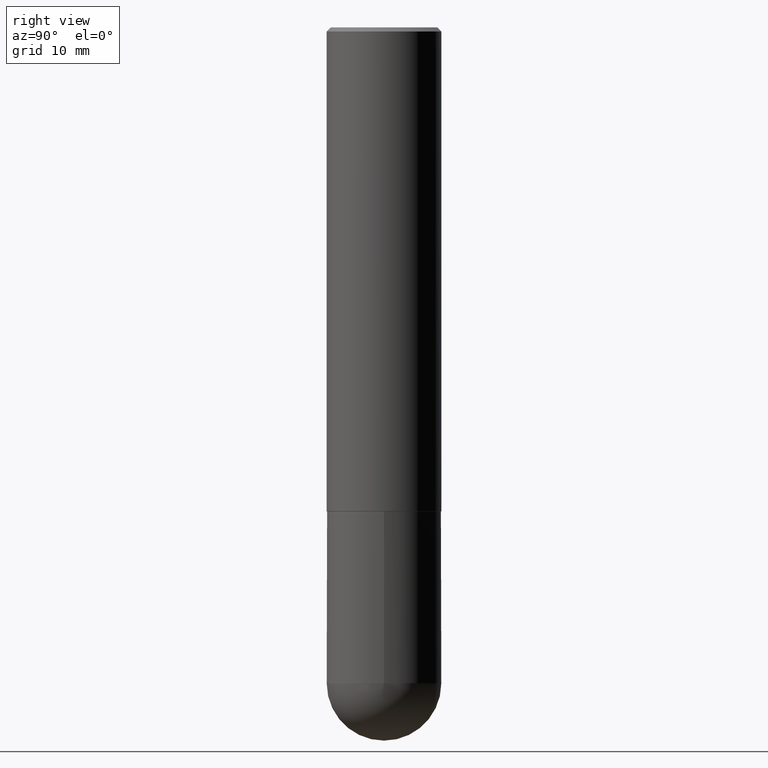
[diagram: clean part render]
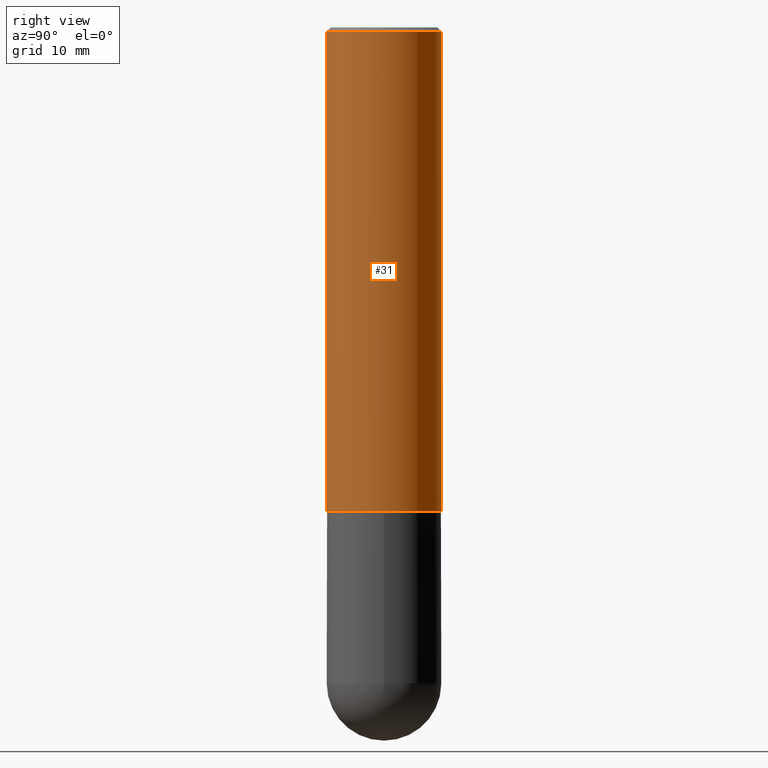
[diagram: same view with one face highlighted and labeled with its STEP entity id]
A machine part, right view. The second image highlights one B-rep face of the part: STEP entity #31.
In plain terms, the highlighted cylindrical surface (partial cylindrical patch) has radius 7.1438 mm, axis along (-0, 0, 1).
Its self-contained STEP definition (entity closure, byte-faithful):
#1 = CARTESIAN_POINT ( 'NONE',  ( -1.963958253099205714E-15, -0.2812500000000085487, -2.373999999999998334 ) ) ;
#4 = ORIENTED_EDGE ( 'NONE', *, *, #10, .T. ) ;
#10 = EDGE_CURVE ( 'NONE', #56, #35, #275, .T. ) ;
#20 = CARTESIAN_POINT ( 'NONE',  ( 4.891942156115939858E-31, -6.981524113867461777E-17, -0.02000000000000006287 ) ) ;
#25 = DIRECTION ( 'NONE',  ( -2.445971078057962310E-29, 3.490762056933719721E-15, 1.000000000000000000 ) ) ;
#31 = ADVANCED_FACE ( 'NONE', ( #311 ), #319, .T. ) ;
#32 = CIRCLE ( 'NONE', #136, 0.2812499999999999445 ) ;
#35 = VERTEX_POINT ( 'NONE', #349 ) ;
#56 = VERTEX_POINT ( 'NONE', #214 ) ;
#59 = CARTESIAN_POINT ( 'NONE',  ( 5.806735339309601077E-29, -8.287069123160647874E-15, -2.373999999999999222 ) ) ;
#95 = AXIS2_PLACEMENT_3D ( 'NONE', #59, #174, #217 ) ;
#125 = DIRECTION ( 'NONE',  ( -2.445971078057962310E-29, 3.490762056933720116E-15, 1.000000000000000000 ) ) ;
#127 = EDGE_LOOP ( 'NONE', ( #333, #4, #282, #348 ) ) ;
#136 = AXIS2_PLACEMENT_3D ( 'NONE', #20, #372, #266 ) ;
#149 = VERTEX_POINT ( 'NONE', #1 ) ;
#151 = CARTESIAN_POINT ( 'NONE',  ( -1.929515061873242463E-15, -0.2812500000000000555, -0.01999999999999908101 ) ) ;
#167 = EDGE_CURVE ( 'NONE', #149, #312, #356, .T. ) ;
#174 = DIRECTION ( 'NONE',  ( -2.445971078057962310E-29, 3.490762056933719721E-15, 1.000000000000000000 ) ) ;
#189 = DIRECTION ( 'NONE',  ( -2.445971078057962310E-29, 3.490762056933720116E-15, 1.000000000000000000 ) ) ;
#211 = DIRECTION ( 'NONE',  ( -6.982962677686266711E-15, -1.000000000000000000, 3.490762056933719721E-15 ) ) ;
#212 = AXIS2_PLACEMENT_3D ( 'NONE', #218, #25, #211 ) ;
#214 = CARTESIAN_POINT ( 'NONE',  ( 1.998401444325312144E-15, 0.2812499999999919509, -2.374000000000000554 ) ) ;
#217 = DIRECTION ( 'NONE',  ( -6.982962677686265133E-15, -1.000000000000000000, 3.885294924322504533E-15 ) ) ;
#218 = CARTESIAN_POINT ( 'NONE',  ( 0.000000000000000000, 0.000000000000000000, 0.000000000000000000 ) ) ;
#231 = EDGE_CURVE ( 'NONE', #149, #56, #308, .T. ) ;
#240 = EDGE_CURVE ( 'NONE', #312, #35, #32, .T. ) ;
#266 = DIRECTION ( 'NONE',  ( -6.982962677686266711E-15, -1.000000000000000000, 3.490694658571003593E-15 ) ) ;
#275 = LINE ( 'NONE', #377, #315 ) ;
#282 = ORIENTED_EDGE ( 'NONE', *, *, #240, .F. ) ;
#308 = CIRCLE ( 'NONE', #95, 0.2812500000000002220 ) ;
#311 = FACE_OUTER_BOUND ( 'NONE', #127, .T. ) ;
#312 = VERTEX_POINT ( 'NONE', #151 ) ;
#315 = VECTOR ( 'NONE', #125, 39.37007874015748143 ) ;
#319 = CYLINDRICAL_SURFACE ( 'NONE', #212, 0.2812500000000001110 ) ;
#326 = VECTOR ( 'NONE', #189, 39.37007874015748143 ) ;
#333 = ORIENTED_EDGE ( 'NONE', *, *, #231, .T. ) ;
#348 = ORIENTED_EDGE ( 'NONE', *, *, #167, .F. ) ;
#349 = CARTESIAN_POINT ( 'NONE',  ( 1.963958253099262512E-15, 0.2812499999999998890, -0.02000000000000104472 ) ) ;
#356 = LINE ( 'NONE', #389, #326 ) ;
#372 = DIRECTION ( 'NONE',  ( -2.445971078057962310E-29, 3.490762056933719721E-15, 1.000000000000000000 ) ) ;
#377 = CARTESIAN_POINT ( 'NONE',  ( 1.998401444325282167E-15, 0.2812500000000001110, -9.817768285126090044E-16 ) ) ;
#389 = CARTESIAN_POINT ( 'NONE',  ( -1.963958253099263301E-15, -0.2812500000000001110, 9.817768285126090044E-16 ) ) ;